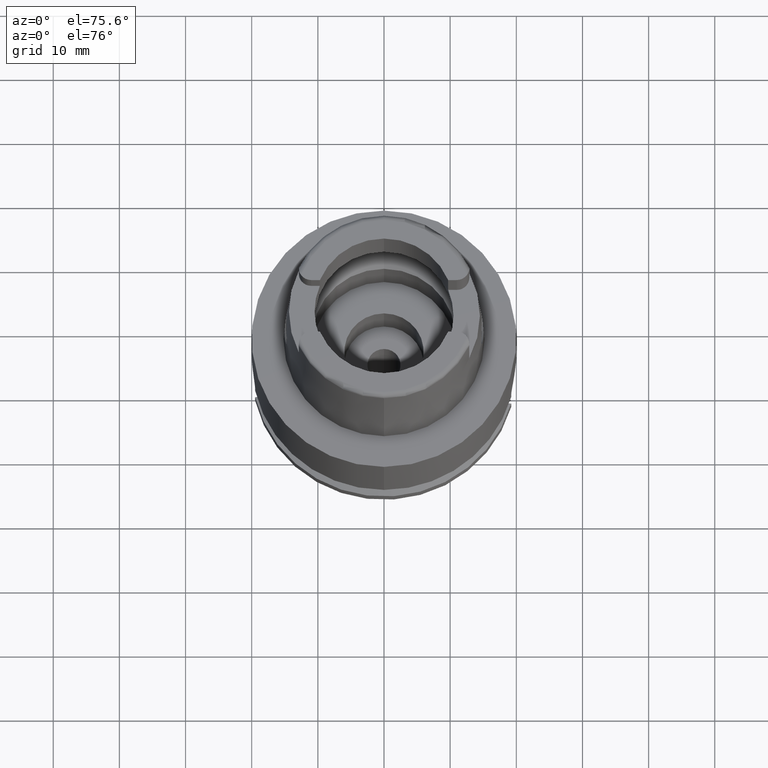
[diagram: clean part render]
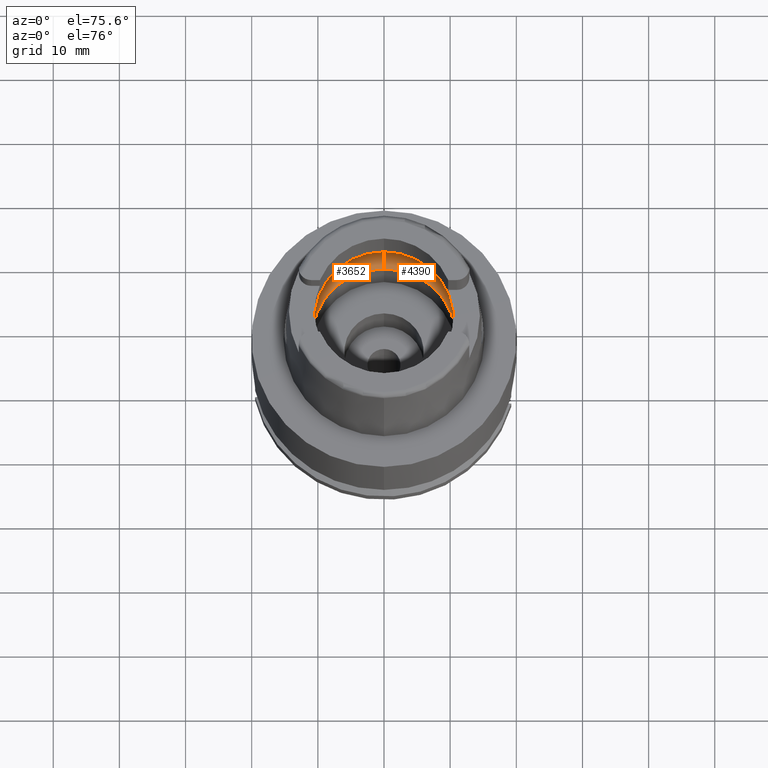
[diagram: same view with one multi-face feature highlighted, each face labeled with its STEP entity id]
A machine part, auxiliary view. The highlighted faces form ONE feature: a constant-radius fillet chain: 2 tangent blend faces with common blend radius 5 mm. The faces share edges in the B-rep.
Their STEP definitions:
[1] entity #4390 (Torus):
#17 = ORIENTED_EDGE ( 'NONE', *, *, #3068, .F. ) ;
#46 = DIRECTION ( 'NONE',  ( 0.0000000000000000000, 0.0000000000000000000, 1.000000000000000000 ) ) ;
#141 = CARTESIAN_POINT ( 'NONE',  ( 12.74455357708000136, 0.0000000000000000000, 3.700000000000000178 ) ) ;
#181 = VERTEX_POINT ( 'NONE', #141 ) ;
#435 = CIRCLE ( 'NONE', #1813, 12.75000000000000533 ) ;
#460 = AXIS2_PLACEMENT_3D ( 'NONE', #5177, #1526, #3162 ) ;
#467 = VERTEX_POINT ( 'NONE', #3837 ) ;
#552 = DIRECTION ( 'NONE',  ( 0.0000000000000000000, 1.000000000000000000, 0.0000000000000000000 ) ) ;
#640 = DIRECTION ( 'NONE',  ( 0.0000000000000000000, 0.6299999999999791322, -0.7765951326141738997 ) ) ;
#1078 = CARTESIAN_POINT ( 'NONE',  ( 12.74455357708000136, 0.1164895916260999947, 3.700000000000000178 ) ) ;
#1083 = VERTEX_POINT ( 'NONE', #1626 ) ;
#1099 = CARTESIAN_POINT ( 'NONE',  ( 12.73125754741000115, 0.6899575664910999606, 3.796706144840999997 ) ) ;
#1208 = CARTESIAN_POINT ( 'NONE',  ( 12.74455357708000136, 0.0000000000000000000, 3.700000000000000178 ) ) ;
#1279 = DIRECTION ( 'NONE',  ( 0.0000000000000000000, -1.000000000000000000, 0.0000000000000000000 ) ) ;
#1282 = CARTESIAN_POINT ( 'NONE',  ( 12.70998420979999999, 1.009356917307000057, 3.933312163512999504 ) ) ;
#1382 = DIRECTION ( 'NONE',  ( 0.0000000000000000000, 0.0000000000000000000, -1.000000000000000000 ) ) ;
#1477 = ORIENTED_EDGE ( 'NONE', *, *, #2840, .F. ) ;
#1495 = CIRCLE ( 'NONE', #4211, 5.000000000000000888 ) ;
#1521 = CARTESIAN_POINT ( 'NONE',  ( 12.70998420979999999, 1.009356917307000057, 3.933312163512999504 ) ) ;
#1526 = DIRECTION ( 'NONE',  ( -1.000000000000000000, 0.0000000000000000000, 0.0000000000000000000 ) ) ;
#1533 = ORIENTED_EDGE ( 'NONE', *, *, #4781, .F. ) ;
#1583 = CARTESIAN_POINT ( 'NONE',  ( 12.71822602740000185, -0.9055746280688999894, 3.882625567459000226 ) ) ;
#1588 = VERTEX_POINT ( 'NONE', #4437 ) ;
#1626 = CARTESIAN_POINT ( 'NONE',  ( 12.70998420979999999, -1.009356917307999923, 3.933312163512999504 ) ) ;
#1813 = AXIS2_PLACEMENT_3D ( 'NONE', #4107, #4990, #2065 ) ;
#1837 = ORIENTED_EDGE ( 'NONE', *, *, #5013, .F. ) ;
#2065 = DIRECTION ( 'NONE',  ( 0.9968615066513395462, -0.07916524841634305087, 0.0000000000000000000 ) ) ;
#2124 = ORIENTED_EDGE ( 'NONE', *, *, #3803, .F. ) ;
#2176 = CIRCLE ( 'NONE', #460, 5.000000000000000888 ) ;
#2453 = ORIENTED_EDGE ( 'NONE', *, *, #3680, .F. ) ;
#2512 = CARTESIAN_POINT ( 'NONE',  ( 0.0000000000000000000, 1.272815980657999902E-14, 0.05033650044222000297 ) ) ;
#2526 = EDGE_CURVE ( 'NONE', #1588, #3549, #2176, .T. ) ;
#2613 = VERTEX_POINT ( 'NONE', #1282 ) ;
#2661 = CARTESIAN_POINT ( 'NONE',  ( 0.0000000000000000000, -12.75000000000000000, 3.933312163512999504 ) ) ;
#2811 = CARTESIAN_POINT ( 'NONE',  ( 0.0000000000000000000, 7.750000000000000000, 3.933312163512999504 ) ) ;
#2831 = CARTESIAN_POINT ( 'NONE',  ( 12.74455357708000136, 0.0000000000000000000, 3.700000000000000178 ) ) ;
#2840 = EDGE_CURVE ( 'NONE', #2950, #467, #1495, .T. ) ;
#2950 = VERTEX_POINT ( 'NONE', #3681 ) ;
#2955 = AXIS2_PLACEMENT_3D ( 'NONE', #2512, #46, #1279 ) ;
#3068 = EDGE_CURVE ( 'NONE', #1588, #2950, #4558, .T. ) ;
#3162 = DIRECTION ( 'NONE',  ( 0.0000000000000000000, -0.6299999999999791322, -0.7765951326141738997 ) ) ;
#3196 = DIRECTION ( 'NONE',  ( 0.0000000000000000000, 0.0000000000000000000, -1.000000000000000000 ) ) ;
#3218 = DIRECTION ( 'NONE',  ( 1.000000000000000000, 0.0000000000000000000, 0.0000000000000000000 ) ) ;
#3367 = EDGE_LOOP ( 'NONE', ( #1533, #1837, #1477, #17, #4254, #2124, #2453 ) ) ;
#3505 = CARTESIAN_POINT ( 'NONE',  ( 12.71822610548000121, 0.9055736448555999907, 3.882625087264000019 ) ) ;
#3549 = VERTEX_POINT ( 'NONE', #2661 ) ;
#3564 = CARTESIAN_POINT ( 'NONE',  ( 12.74455357708000136, -0.1164898603219999829, 3.700000000000000178 ) ) ;
#3565 = CARTESIAN_POINT ( 'NONE',  ( 0.0000000000000000000, 1.272815980657999902E-14, 3.933312163512999504 ) ) ;
#3584 = CIRCLE ( 'NONE', #4508, 12.75000000000000000 ) ;
#3614 = CARTESIAN_POINT ( 'NONE',  ( 12.73125744058999942, -0.6899600012526999615, 3.796706888550000158 ) ) ;
#3680 = EDGE_CURVE ( 'NONE', #181, #1083, #3978, .T. ) ;
#3681 = CARTESIAN_POINT ( 'NONE',  ( 0.0000000000000000000, 10.90000000000000036, 0.05033650044222000297 ) ) ;
#3803 = EDGE_CURVE ( 'NONE', #1083, #3549, #435, .T. ) ;
#3837 = CARTESIAN_POINT ( 'NONE',  ( 0.0000000000000000000, 12.75000000000000000, 3.933312163512999504 ) ) ;
#3880 = B_SPLINE_CURVE_WITH_KNOTS ( 'NONE', 3,
 ( #1521, #3505, #1099, #4725, #1078, #2831 ),
 .UNSPECIFIED., .F., .F.,
 ( 4, 1, 1, 4 ),
 ( 0.0000000000000000000, 0.3333333333333000081, 0.6666666666667000474, 1.000000000000000000 ),
 .UNSPECIFIED. ) ;
#3978 = B_SPLINE_CURVE_WITH_KNOTS ( 'NONE', 3,
 ( #1208, #3564, #4849, #3614, #1583, #5210 ),
 .UNSPECIFIED., .F., .F.,
 ( 4, 1, 1, 4 ),
 ( 0.0000000000000000000, 0.3333333333333000081, 0.6666666666667000474, 1.000000000000000000 ),
 .UNSPECIFIED. ) ;
#4107 = CARTESIAN_POINT ( 'NONE',  ( 0.0000000000000000000, 1.272815980657999902E-14, 3.933312163512999504 ) ) ;
#4211 = AXIS2_PLACEMENT_3D ( 'NONE', #2811, #3218, #640 ) ;
#4254 = ORIENTED_EDGE ( 'NONE', *, *, #2526, .T. ) ;
#4390 = ADVANCED_FACE ( 'NONE', ( #5156 ), #5228, .F. ) ;
#4437 = CARTESIAN_POINT ( 'NONE',  ( 0.0000000000000000000, -10.90000000000000036, 0.05033650044222000297 ) ) ;
#4508 = AXIS2_PLACEMENT_3D ( 'NONE', #4580, #1382, #552 ) ;
#4558 = CIRCLE ( 'NONE', #2955, 10.90000000000000036 ) ;
#4580 = CARTESIAN_POINT ( 'NONE',  ( 0.0000000000000000000, 1.272815980657999902E-14, 3.933312163512999504 ) ) ;
#4725 = CARTESIAN_POINT ( 'NONE',  ( 12.74221291712999893, 0.3492178183419999971, 3.717717179960999818 ) ) ;
#4781 = EDGE_CURVE ( 'NONE', #2613, #181, #3880, .T. ) ;
#4802 = DIRECTION ( 'NONE',  ( 0.0000000000000000000, -1.000000000000000000, 0.0000000000000000000 ) ) ;
#4849 = CARTESIAN_POINT ( 'NONE',  ( 12.74221291684999890, -0.3492184789958999724, 3.717717192588000152 ) ) ;
#4990 = DIRECTION ( 'NONE',  ( 0.0000000000000000000, 0.0000000000000000000, -1.000000000000000000 ) ) ;
#5013 = EDGE_CURVE ( 'NONE', #467, #2613, #3584, .T. ) ;
#5057 = AXIS2_PLACEMENT_3D ( 'NONE', #3565, #3196, #4802 ) ;
#5156 = FACE_OUTER_BOUND ( 'NONE', #3367, .T. ) ;
#5177 = CARTESIAN_POINT ( 'NONE',  ( 0.0000000000000000000, -7.750000000000000000, 3.933312163512999504 ) ) ;
#5210 = CARTESIAN_POINT ( 'NONE',  ( 12.70998420979999999, -1.009356917307999923, 3.933312163512999504 ) ) ;
#5228 = TOROIDAL_SURFACE ( 'NONE', #5057, 7.750000000000000000, 5.000000000000000000 ) ;
[2] entity #3652 (Torus):
#1 = DIRECTION ( 'NONE',  ( 0.0000000000000000000, 0.0000000000000000000, 1.000000000000000000 ) ) ;
#171 = CARTESIAN_POINT ( 'NONE',  ( -12.74455357708000136, 0.0000000000000000000, 3.700000000000000178 ) ) ;
#247 = EDGE_CURVE ( 'NONE', #3217, #4281, #995, .T. ) ;
#460 = AXIS2_PLACEMENT_3D ( 'NONE', #5177, #1526, #3162 ) ;
#467 = VERTEX_POINT ( 'NONE', #3837 ) ;
#640 = DIRECTION ( 'NONE',  ( 0.0000000000000000000, 0.6299999999999791322, -0.7765951326141738997 ) ) ;
#660 = CARTESIAN_POINT ( 'NONE',  ( -12.74455357708000136, -0.1164895712142999945, 3.700000000000000178 ) ) ;
#706 = CARTESIAN_POINT ( 'NONE',  ( -12.70998420979999999, -1.009356917307999923, 3.933312163512999504 ) ) ;
#893 = DIRECTION ( 'NONE',  ( 0.0000000000000000000, 0.0000000000000000000, -1.000000000000000000 ) ) ;
#995 = B_SPLINE_CURVE_WITH_KNOTS ( 'NONE', 3,
 ( #706, #2778, #4762, #1972, #660, #1091 ),
 .UNSPECIFIED., .F., .F.,
 ( 4, 1, 1, 4 ),
 ( 0.0000000000000000000, 0.3333333333333000081, 0.6666666666667000474, 1.000000000000000000 ),
 .UNSPECIFIED. ) ;
#1002 = FACE_OUTER_BOUND ( 'NONE', #1223, .T. ) ;
#1091 = CARTESIAN_POINT ( 'NONE',  ( -12.74455357708000136, 0.0000000000000000000, 3.700000000000000178 ) ) ;
#1223 = EDGE_LOOP ( 'NONE', ( #2658, #5164, #5020, #1640, #2906, #4415, #3239 ) ) ;
#1237 = CIRCLE ( 'NONE', #1750, 12.75000000000000533 ) ;
#1256 = DIRECTION ( 'NONE',  ( 0.0000000000000000000, 1.000000000000000000, 0.0000000000000000000 ) ) ;
#1400 = DIRECTION ( 'NONE',  ( 0.0000000000000000000, 0.0000000000000000000, -1.000000000000000000 ) ) ;
#1495 = CIRCLE ( 'NONE', #4211, 5.000000000000000888 ) ;
#1526 = DIRECTION ( 'NONE',  ( -1.000000000000000000, 0.0000000000000000000, 0.0000000000000000000 ) ) ;
#1588 = VERTEX_POINT ( 'NONE', #4437 ) ;
#1604 = EDGE_CURVE ( 'NONE', #3436, #467, #1237, .T. ) ;
#1640 = ORIENTED_EDGE ( 'NONE', *, *, #2840, .T. ) ;
#1726 = TOROIDAL_SURFACE ( 'NONE', #3770, 7.750000000000000000, 5.000000000000000000 ) ;
#1750 = AXIS2_PLACEMENT_3D ( 'NONE', #5271, #3233, #3283 ) ;
#1972 = CARTESIAN_POINT ( 'NONE',  ( -12.74221292844000075, -0.3492178066839999873, 3.717717104612000334 ) ) ;
#2064 = EDGE_CURVE ( 'NONE', #3549, #3217, #2262, .T. ) ;
#2103 = CARTESIAN_POINT ( 'NONE',  ( -12.70998420979999999, 1.009356917307999923, 3.933312163512999504 ) ) ;
#2176 = CIRCLE ( 'NONE', #460, 5.000000000000000888 ) ;
#2262 = CIRCLE ( 'NONE', #5231, 12.75000000000000000 ) ;
#2517 = AXIS2_PLACEMENT_3D ( 'NONE', #3661, #1, #1256 ) ;
#2525 = DIRECTION ( 'NONE',  ( 0.0000000000000000000, -1.000000000000000000, 0.0000000000000000000 ) ) ;
#2526 = EDGE_CURVE ( 'NONE', #1588, #3549, #2176, .T. ) ;
#2553 = EDGE_CURVE ( 'NONE', #2950, #1588, #4461, .T. ) ;
#2594 = CARTESIAN_POINT ( 'NONE',  ( -12.73125751627000035, 0.6899582059268000167, 3.796706360378999889 ) ) ;
#2622 = CARTESIAN_POINT ( 'NONE',  ( -12.70998420979999999, 1.009356917307999923, 3.933312163512999504 ) ) ;
#2658 = ORIENTED_EDGE ( 'NONE', *, *, #2064, .F. ) ;
#2661 = CARTESIAN_POINT ( 'NONE',  ( 0.0000000000000000000, -12.75000000000000000, 3.933312163512999504 ) ) ;
#2778 = CARTESIAN_POINT ( 'NONE',  ( -12.71822604802000001, -0.9055743684054998743, 3.882625440641000125 ) ) ;
#2811 = CARTESIAN_POINT ( 'NONE',  ( 0.0000000000000000000, 7.750000000000000000, 3.933312163512999504 ) ) ;
#2840 = EDGE_CURVE ( 'NONE', #2950, #467, #1495, .T. ) ;
#2906 = ORIENTED_EDGE ( 'NONE', *, *, #1604, .F. ) ;
#2950 = VERTEX_POINT ( 'NONE', #3681 ) ;
#2967 = CARTESIAN_POINT ( 'NONE',  ( -12.74221290559999886, 0.3492184865941000416, 3.717717267404999859 ) ) ;
#3022 = CARTESIAN_POINT ( 'NONE',  ( -12.74455357708000136, 0.1164898789877999996, 3.700000000000000178 ) ) ;
#3162 = DIRECTION ( 'NONE',  ( 0.0000000000000000000, -0.6299999999999791322, -0.7765951326141738997 ) ) ;
#3165 = CARTESIAN_POINT ( 'NONE',  ( -12.74455357708000136, 0.0000000000000000000, 3.700000000000000178 ) ) ;
#3217 = VERTEX_POINT ( 'NONE', #3809 ) ;
#3218 = DIRECTION ( 'NONE',  ( 1.000000000000000000, 0.0000000000000000000, 0.0000000000000000000 ) ) ;
#3233 = DIRECTION ( 'NONE',  ( 0.0000000000000000000, 0.0000000000000000000, -1.000000000000000000 ) ) ;
#3239 = ORIENTED_EDGE ( 'NONE', *, *, #247, .F. ) ;
#3283 = DIRECTION ( 'NONE',  ( -0.9968615066513395462, 0.07916524841634305087, 0.0000000000000000000 ) ) ;
#3435 = CARTESIAN_POINT ( 'NONE',  ( 0.0000000000000000000, 1.272815980657999902E-14, 3.933312163512999504 ) ) ;
#3436 = VERTEX_POINT ( 'NONE', #2103 ) ;
#3549 = VERTEX_POINT ( 'NONE', #2661 ) ;
#3652 = ADVANCED_FACE ( 'NONE', ( #1002 ), #1726, .F. ) ;
#3661 = CARTESIAN_POINT ( 'NONE',  ( 0.0000000000000000000, 1.272815980657999902E-14, 0.05033650044222000297 ) ) ;
#3681 = CARTESIAN_POINT ( 'NONE',  ( 0.0000000000000000000, 10.90000000000000036, 0.05033650044222000297 ) ) ;
#3770 = AXIS2_PLACEMENT_3D ( 'NONE', #3435, #1400, #4326 ) ;
#3809 = CARTESIAN_POINT ( 'NONE',  ( -12.70998420979999999, -1.009356917307999923, 3.933312163512999504 ) ) ;
#3837 = CARTESIAN_POINT ( 'NONE',  ( 0.0000000000000000000, 12.75000000000000000, 3.933312163512999504 ) ) ;
#4211 = AXIS2_PLACEMENT_3D ( 'NONE', #2811, #3218, #640 ) ;
#4281 = VERTEX_POINT ( 'NONE', #3165 ) ;
#4326 = DIRECTION ( 'NONE',  ( 0.0000000000000000000, -1.000000000000000000, 0.0000000000000000000 ) ) ;
#4415 = ORIENTED_EDGE ( 'NONE', *, *, #4981, .F. ) ;
#4437 = CARTESIAN_POINT ( 'NONE',  ( 0.0000000000000000000, -10.90000000000000036, 0.05033650044222000297 ) ) ;
#4461 = CIRCLE ( 'NONE', #2517, 10.90000000000000036 ) ;
#4575 = B_SPLINE_CURVE_WITH_KNOTS ( 'NONE', 3,
 ( #171, #3022, #2967, #2594, #5038, #2622 ),
 .UNSPECIFIED., .F., .F.,
 ( 4, 1, 1, 4 ),
 ( 0.0000000000000000000, 0.3333333333333000081, 0.6666666666667000474, 1.000000000000000000 ),
 .UNSPECIFIED. ) ;
#4762 = CARTESIAN_POINT ( 'NONE',  ( -12.73125747192000112, -0.6899593579563000345, 3.796706671708999892 ) ) ;
#4911 = CARTESIAN_POINT ( 'NONE',  ( 0.0000000000000000000, 1.272815980657999902E-14, 3.933312163512999504 ) ) ;
#4981 = EDGE_CURVE ( 'NONE', #4281, #3436, #4575, .T. ) ;
#5020 = ORIENTED_EDGE ( 'NONE', *, *, #2553, .F. ) ;
#5038 = CARTESIAN_POINT ( 'NONE',  ( -12.71822608499000040, 0.9055739029613000257, 3.882625213320999968 ) ) ;
#5164 = ORIENTED_EDGE ( 'NONE', *, *, #2526, .F. ) ;
#5177 = CARTESIAN_POINT ( 'NONE',  ( 0.0000000000000000000, -7.750000000000000000, 3.933312163512999504 ) ) ;
#5231 = AXIS2_PLACEMENT_3D ( 'NONE', #4911, #893, #2525 ) ;
#5271 = CARTESIAN_POINT ( 'NONE',  ( 0.0000000000000000000, 1.272815980657999902E-14, 3.933312163512999504 ) ) ;